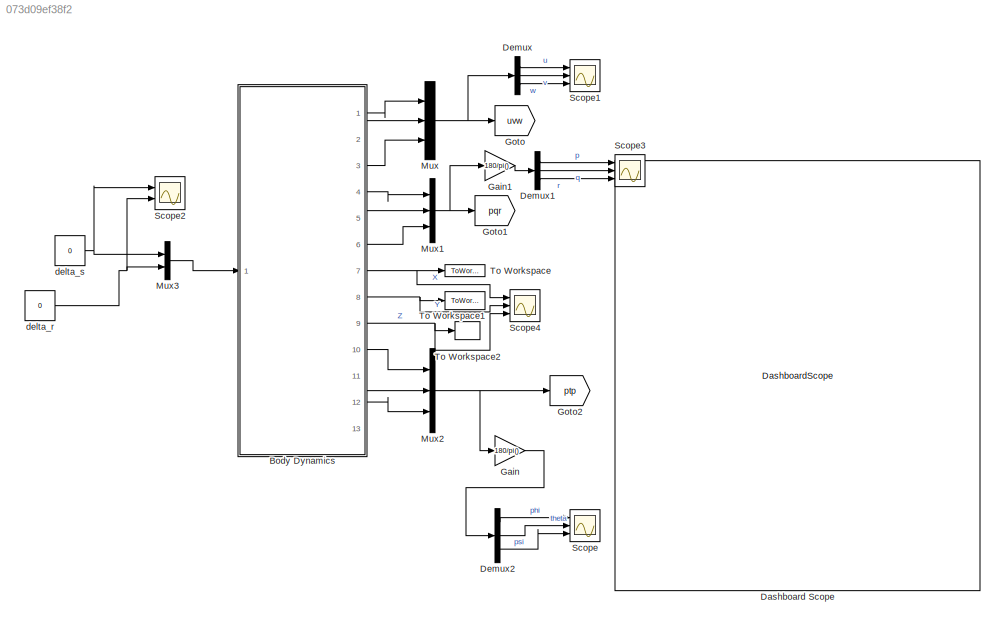
MODEL slx_073d09ef38f2
KIND model
CONFIG AbsTol = auto
CONFIG EnableMultiTasking = off
CONFIG FixedStep = auto
CONFIG MaxStep = auto
CONFIG MinStep = auto
CONFIG RelTol = 1e-3
CONFIG SampleTimeConstraint = Unconstrained
CONFIG Solver = VariableStepAuto
CONFIG SolverName = VariableStepAuto
CONFIG StartTime = 0.0
CONFIG StopTime = 70
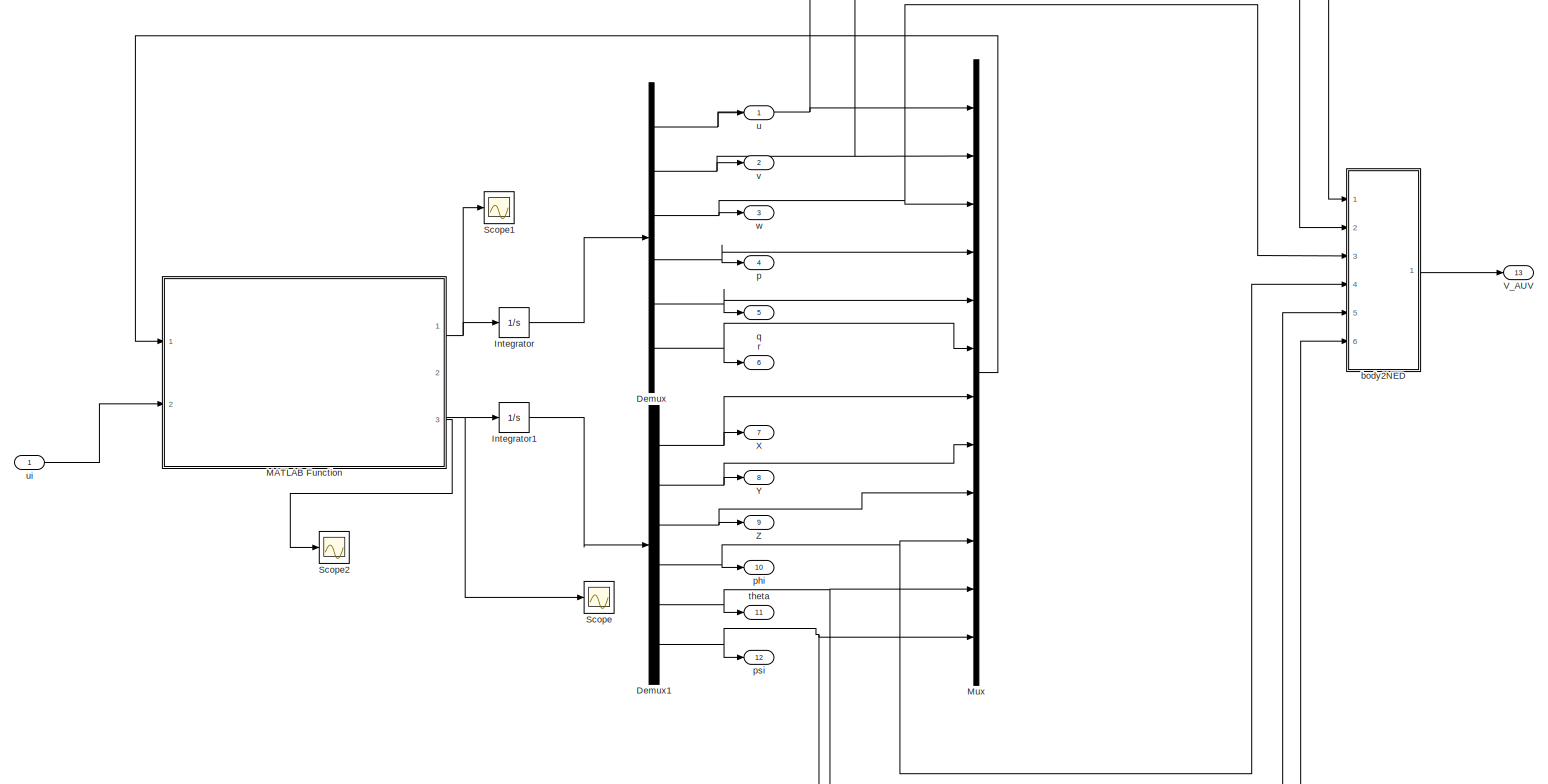
[diagram: Body Dynamics - part 1/1, most of the canvas]
BLOCK [SubSystem] Body Dynamics
  Ports = [1, 13]
  RequestExecContextInheritance = off
BLOCK [Demux] Body Dynamics/Demux
  DisplayOption = bar
  Outputs = 6
  Ports = [1, 6]
BLOCK [Demux] Body Dynamics/Demux1
  DisplayOption = bar
  Outputs = 6
  Ports = [1, 6]
BLOCK [Integrator] Body Dynamics/Integrator
  InitialCondition = [1.54; 0 ; 0; 0; 0; 0]
  Ports = [1, 1]
BLOCK [Integrator] Body Dynamics/Integrator1
  InitialCondition = [0; 0; 0.0196; -5*pi/180; 0; 0]
  Ports = [1, 1]
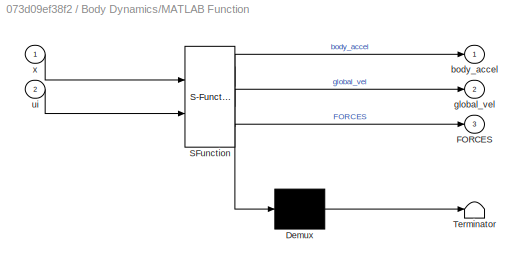
BLOCK [SubSystem] Body Dynamics/MATLAB Function
  ErrorFcn = Stateflow.Translate.translate
  PermitHierarchicalResolution = ExplicitOnly
  Ports = [2, 3]
  RequestExecContextInheritance = off
  SFBlockType = MATLAB Function
  TreatAsAtomicUnit = on
BLOCK [Demux] Body Dynamics/MATLAB Function/ Demux 
  Outputs = 1
  Ports = [1, 1]
BLOCK [S-Function] Body Dynamics/MATLAB Function/ SFunction 
  EnableBusSupport = on
  FunctionName = sf_sfun
  PortCounts = [2 4]
  Ports = [2, 4]
  SFcnIsStateOwnerBlock = off
  SFunctionDeploymentMode = off
  Tag = Stateflow S-Function 2
BLOCK [Terminator] Body Dynamics/MATLAB Function/ Terminator 
BLOCK [Outport] Body Dynamics/MATLAB Function/FORCES
  IconDisplay = Port number
  Port = 3
BLOCK [Outport] Body Dynamics/MATLAB Function/body_accel
  IconDisplay = Port number
BLOCK [Outport] Body Dynamics/MATLAB Function/global_vel
  IconDisplay = Port number
  Port = 2
BLOCK [Inport] Body Dynamics/MATLAB Function/ui
  IconDisplay = Port number
  Port = 2
BLOCK [Inport] Body Dynamics/MATLAB Function/x
  IconDisplay = Port number
BLOCK [Mux] Body Dynamics/Mux
  DisplayOption = bar
  Inputs = 12
  Ports = [12, 1]
BLOCK [Scope] Body Dynamics/Scope
  Floating = off
  NumInputPorts = 1
  Ports = [1]
  ScopeSpecificationString = Simulink.scopes.TimeScopeBlockCfg('CurrentConfiguration', extmgr.ConfigurationSet(extmgr.Configuration('Core','General UI',true),extmgr.Configuration('Core','Source UI',true),extmgr.Configuration('Sources','WiredSimulink',true,'DataLoggingVariableName','ScopeData1'),extmgr.Configuration('Visuals','Time Domain',true,'SerializedDisplays',{struct('MinYLimReal','-0.1925','MaxYLimReal','1.7325','YLabel...<+1671ch>
BLOCK [Scope] Body Dynamics/Scope1
  Floating = off
  NumInputPorts = 1
  Ports = [1]
  ScopeSpecificationString = Simulink.scopes.TimeScopeBlockCfg('CurrentConfiguration', extmgr.ConfigurationSet(extmgr.Configuration('Core','General UI',true),extmgr.Configuration('Core','Source UI',true),extmgr.Configuration('Sources','WiredSimulink',true,'DataLoggingVariableName','ScopeData1'),extmgr.Configuration('Visuals','Time Domain',true,'SerializedDisplays',{struct('MinYLimReal','-2.31341','MaxYLimReal','2.53823','YLab...<+1701ch>
BLOCK [Scope] Body Dynamics/Scope2
  Floating = off
  NumInputPorts = 1
  Ports = [1]
  ScopeSpecificationString = Simulink.scopes.TimeScopeBlockCfg('CurrentConfiguration', extmgr.ConfigurationSet(extmgr.Configuration('Core','General UI',true),extmgr.Configuration('Core','Source UI',true),extmgr.Configuration('Sources','WiredSimulink',true,'DataLoggingVariableName','ScopeData2'),extmgr.Configuration('Visuals','Time Domain',true,'SerializedDisplays',{struct('MinYLimReal','-2.9763','MaxYLimReal','18.55477','YLab...<+1780ch>
BLOCK [Outport] Body Dynamics/V_AUV
  IconDisplay = Port number
  Port = 13
BLOCK [Outport] Body Dynamics/X
  IconDisplay = Port number
  Port = 7
BLOCK [Outport] Body Dynamics/Y
  IconDisplay = Port number
  Port = 8
BLOCK [Outport] Body Dynamics/Z
  IconDisplay = Port number
  Port = 9
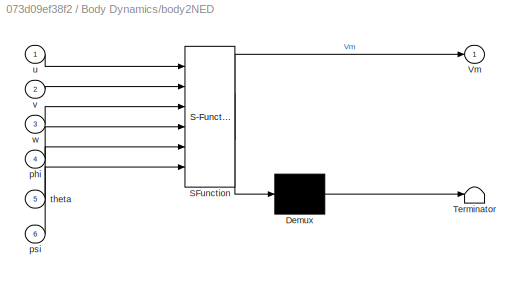
BLOCK [SubSystem] Body Dynamics/body2NED
  ErrorFcn = Stateflow.Translate.translate
  PermitHierarchicalResolution = ExplicitOnly
  Ports = [6, 1]
  RequestExecContextInheritance = off
  SFBlockType = MATLAB Function
  TreatAsAtomicUnit = on
BLOCK [Demux] Body Dynamics/body2NED/ Demux 
  Outputs = 1
  Ports = [1, 1]
BLOCK [S-Function] Body Dynamics/body2NED/ SFunction 
  EnableBusSupport = on
  FunctionName = sf_sfun
  PortCounts = [6 2]
  Ports = [6, 2]
  SFcnIsStateOwnerBlock = off
  SFunctionDeploymentMode = off
  Tag = Stateflow S-Function 11
BLOCK [Terminator] Body Dynamics/body2NED/ Terminator 
BLOCK [Outport] Body Dynamics/body2NED/Vm
  IconDisplay = Port number
  VectorParamsAs1DForOutWhenUnconnected = off
BLOCK [Inport] Body Dynamics/body2NED/phi
  IconDisplay = Port number
  Port = 4
BLOCK [Inport] Body Dynamics/body2NED/psi
  IconDisplay = Port number
  Port = 6
BLOCK [Inport] Body Dynamics/body2NED/theta
  IconDisplay = Port number
  Port = 5
BLOCK [Inport] Body Dynamics/body2NED/u
  IconDisplay = Port number
BLOCK [Inport] Body Dynamics/body2NED/v
  IconDisplay = Port number
  Port = 2
BLOCK [Inport] Body Dynamics/body2NED/w
  IconDisplay = Port number
  Port = 3
BLOCK [Outport] Body Dynamics/p
  IconDisplay = Port number
  Port = 4
BLOCK [Outport] Body Dynamics/phi
  IconDisplay = Port number
  Port = 10
BLOCK [Outport] Body Dynamics/psi
  IconDisplay = Port number
  Port = 12
BLOCK [Outport] Body Dynamics/q
  IconDisplay = Port number
  Port = 5
BLOCK [Outport] Body Dynamics/r
  IconDisplay = Port number
  Port = 6
BLOCK [Outport] Body Dynamics/theta
  IconDisplay = Port number
  Port = 11
BLOCK [Outport] Body Dynamics/u
  IconDisplay = Port number
BLOCK [Inport] Body Dynamics/ui
  IconDisplay = Port number
BLOCK [Outport] Body Dynamics/v
  IconDisplay = Port number
  Port = 2
BLOCK [Outport] Body Dynamics/w
  IconDisplay = Port number
  Port = 3
BLOCK [DashboardScope] Dashboard Scope
BLOCK [Demux] Demux
  DisplayOption = bar
  Outputs = 3
  Ports = [1, 3]
BLOCK [Demux] Demux1
  DisplayOption = bar
  Outputs = 3
  Ports = [1, 3]
BLOCK [Demux] Demux2
  DisplayOption = bar
  Outputs = 3
  Ports = [1, 3]
BLOCK [Gain] Gain
  Gain = 180/pi()
  OutDataTypeStr = Inherit: Inherit via internal rule
  ParamDataTypeStr = Inherit: Inherit via internal rule
  SaturateOnIntegerOverflow = off
BLOCK [Gain] Gain1
  Gain = 180/pi()
  OutDataTypeStr = Inherit: Inherit via internal rule
  ParamDataTypeStr = Inherit: Inherit via internal rule
  SaturateOnIntegerOverflow = off
BLOCK [Goto] Goto
  GotoTag = uvw
BLOCK [Goto] Goto1
  GotoTag = pqr
BLOCK [Goto] Goto2
  GotoTag = ptp
BLOCK [Mux] Mux
  DisplayOption = bar
  Inputs = 3
  Ports = [3, 1]
BLOCK [Mux] Mux1
  DisplayOption = bar
  Inputs = 3
  Ports = [3, 1]
BLOCK [Mux] Mux2
  DisplayOption = bar
  Inputs = 3
  Ports = [3, 1]
BLOCK [Mux] Mux3
  DisplayOption = bar
  Inputs = 2
  Ports = [2, 1]
BLOCK [Scope] Scope
  Floating = off
  NumInputPorts = 3
  Ports = [3]
  ScopeSpecificationString = Simulink.scopes.TimeScopeBlockCfg('CurrentConfiguration', extmgr.ConfigurationSet(extmgr.Configuration('Core','General UI',true),extmgr.Configuration('Core','Source UI',true),extmgr.Configuration('Sources','WiredSimulink',true),extmgr.Configuration('Visuals','Time Domain',true,'SerializedDisplays',{struct('MinYLimReal','-5.625','MaxYLimReal','0.625','YLabelReal','angle [deg]','MinYLimMag','0.00000...<+1469ch>
BLOCK [Scope] Scope1
  Floating = off
  NumInputPorts = 3
  Ports = [3]
  ScopeSpecificationString = Simulink.scopes.TimeScopeBlockCfg('CurrentConfiguration', extmgr.ConfigurationSet(extmgr.Configuration('Core','General UI',true),extmgr.Configuration('Core','Source UI',true),extmgr.Configuration('Sources','WiredSimulink',true,'DataLoggingVariableName','ScopeData2'),extmgr.Configuration('Visuals','Time Domain',true,'SerializedDisplays',{struct('MinYLimReal','-0.33597','MaxYLimReal','1.74844','YLab...<+1677ch>
BLOCK [Scope] Scope2
  Floating = off
  NumInputPorts = 2
  Ports = [2]
  ScopeSpecificationString = Simulink.scopes.TimeScopeBlockCfg('CurrentConfiguration', extmgr.ConfigurationSet(extmgr.Configuration('Core','General UI',true),extmgr.Configuration('Core','Source UI',true),extmgr.Configuration('Sources','WiredSimulink',true,'DataLoggingVariableName','ScopeData3'),extmgr.Configuration('Visuals','Time Domain',true,'SerializedDisplays',{struct('MinYLimReal','-0.08727','MaxYLimReal','0.08727','YLab...<+1454ch>
BLOCK [Scope] Scope3
  Floating = off
  NumInputPorts = 3
  Ports = [3]
  ScopeSpecificationString = Simulink.scopes.TimeScopeBlockCfg('CurrentConfiguration', extmgr.ConfigurationSet(extmgr.Configuration('Core','General UI',true),extmgr.Configuration('Core','Source UI',true),extmgr.Configuration('Sources','WiredSimulink',true,'DataLoggingVariableName','ScopeData4'),extmgr.Configuration('Visuals','Time Domain',true,'SerializedDisplays',{struct('MinYLimReal','-1.00000','MaxYLimReal','1.00000','YLab...<+1540ch>
BLOCK [Scope] Scope4
  Floating = off
  NumInputPorts = 3
  Ports = [3]
  ScopeSpecificationString = Simulink.scopes.TimeScopeBlockCfg('CurrentConfiguration', extmgr.ConfigurationSet(extmgr.Configuration('Core','General UI',true),extmgr.Configuration('Core','Source UI',true),extmgr.Configuration('Sources','WiredSimulink',true,'DataLoggingVariableName','ScopeData3'),extmgr.Configuration('Visuals','Time Domain',true,'SerializedDisplays',{struct('MinYLimReal','-15.04646','MaxYLimReal','92.0214','YLa...<+1567ch>
BLOCK [ToWorkspace] To Workspace
  MaxDataPoints = inf
  Ports = [1]
  SampleTime = -1
  Save2DSignal = 2-D array (concatenate along first dimension)
  VariableName = X
BLOCK [ToWorkspace] To Workspace1
  MaxDataPoints = inf
  Ports = [1]
  SampleTime = -1
  Save2DSignal = 2-D array (concatenate along first dimension)
  VariableName = Y
BLOCK [ToWorkspace] To Workspace2
  MaxDataPoints = inf
  Ports = [1]
  SampleTime = -1
  Save2DSignal = 2-D array (concatenate along first dimension)
  VariableName = Z
BLOCK [Constant] delta_r
  Value = 0
BLOCK [Constant] delta_s
  Value = 0
NET Body Dynamics/Demux1:1 -> Body Dynamics/Mux:7, Body Dynamics/X:1
NET Body Dynamics/Demux1:2 -> Body Dynamics/Mux:8, Body Dynamics/Y:1
NET Body Dynamics/Demux1:3 -> Body Dynamics/Mux:9, Body Dynamics/Z:1
NET Body Dynamics/Demux1:4 -> Body Dynamics/Mux:10, Body Dynamics/body2NED:4, Body Dynamics/phi:1
NET Body Dynamics/Demux1:5 -> Body Dynamics/Mux:11, Body Dynamics/body2NED:5, Body Dynamics/theta:1
NET Body Dynamics/Demux1:6 -> Body Dynamics/Mux:12, Body Dynamics/body2NED:6, Body Dynamics/psi:1
NET Body Dynamics/Demux:1 -> Body Dynamics/Mux:1, Body Dynamics/body2NED:1, Body Dynamics/u:1
NET Body Dynamics/Demux:2 -> Body Dynamics/Mux:2, Body Dynamics/body2NED:2, Body Dynamics/v:1
NET Body Dynamics/Demux:3 -> Body Dynamics/Mux:3, Body Dynamics/body2NED:3, Body Dynamics/w:1
NET Body Dynamics/Demux:4 -> Body Dynamics/Mux:4, Body Dynamics/p:1
NET Body Dynamics/Demux:5 -> Body Dynamics/Mux:5, Body Dynamics/q:1
NET Body Dynamics/Demux:6 -> Body Dynamics/Mux:6, Body Dynamics/r:1
LINE Body Dynamics/Integrator1:1 -> Body Dynamics/Demux1:1
LINE Body Dynamics/Integrator:1 -> Body Dynamics/Demux:1
NET Body Dynamics/MATLAB Function:1 -> Body Dynamics/Integrator:1, Body Dynamics/Scope1:1
NET Body Dynamics/MATLAB Function:2 -> Body Dynamics/Integrator1:1, Body Dynamics/Scope:1
LINE Body Dynamics/MATLAB Function:3 -> Body Dynamics/Scope2:1
LINE Body Dynamics/Mux:1 -> Body Dynamics/MATLAB Function:1
LINE Body Dynamics/body2NED:1 -> Body Dynamics/V_AUV:1
LINE Body Dynamics/ui:1 -> Body Dynamics/MATLAB Function:2
LINE Body Dynamics:1 -> Mux:1
LINE Body Dynamics:10 -> Mux2:1
LINE Body Dynamics:11 -> Mux2:2
LINE Body Dynamics:12 -> Mux2:3
LINE Body Dynamics:2 -> Mux:2
LINE Body Dynamics:3 -> Mux:3
LINE Body Dynamics:4 -> Mux1:1
LINE Body Dynamics:5 -> Mux1:2
LINE Body Dynamics:6 -> Mux1:3
NET Body Dynamics:7 -> Scope4:1, To Workspace:1
NET Body Dynamics:8 -> Scope4:2, To Workspace1:1
NET Body Dynamics:9 -> Scope4:3, To Workspace2:1
LINE Demux1:1 -> Scope3:1
LINE Demux1:2 -> Scope3:2
LINE Demux1:3 -> Scope3:3
LINE Demux2:1 -> Scope:1
LINE Demux2:2 -> Scope:2
LINE Demux2:3 -> Scope:3
LINE Demux:1 -> Scope1:1
LINE Demux:2 -> Scope1:2
LINE Demux:3 -> Scope1:3
LINE Gain1:1 -> Demux1:1
LINE Gain:1 -> Demux2:1
NET Mux1:1 -> Gain1:1, Goto1:1
NET Mux2:1 -> Gain:1, Goto2:1
LINE Mux3:1 -> Body Dynamics:1
NET Mux:1 -> Demux:1, Goto:1
NET delta_r:1 -> Mux3:2, Scope2:2
NET delta_s:1 -> Mux3:1, Scope2:1
note: NET lines group one-source signal fan-out (src -> all destinations, sorted); 1:1 wires keep LINE
CHART Body Dynamics/MATLAB Function states=1 transitions=1
  STATE_LABEL 'eML_blk_kernel()'
  STATE_LABEL "SCRIPT:\n% REMUS.M Vehicle Simulator, returns the \n%   time derivative of the state vector\nfunction [body_accel,global_vel,FORCES] = remus(x,ui)\n% TERMS\n% ---------------------------------------------------------------------\n% STATE VECTOR:\n% x = [u v w p q r xpos ypos zpos phi theta psi]'\n% Body-referenced Coordinates\n% u = Surge velocity [m/sec]\n% v = Sway velocity [m/sec]\n% w = Heave velocity [m...<+3608ch>"
CHART Body Dynamics/body2NED states=1 transitions=1
  STATE_LABEL 'eML_blk_kernel()'
  STATE_LABEL 'SCRIPT:\nfunction Vm= fcn(u,v,w,phi,theta,psi)\nN=[cos(theta)*cos(psi) (sin(phi)*sin(theta)*cos(psi)-cos(phi)*sin(psi)) (cos(phi)*sin(theta)*cos(psi)+sin(phi)*sin(psi));\n   -cos(theta)*sin(psi) -(sin(phi)*sin(theta)*sin(psi)+cos(phi)*cos(psi)) -(cos(phi)*sin(theta)*sin(psi) - sin(phi)*cos(psi));\n   sin(theta) -sin(phi)*cos(theta) -cos(phi)*cos(theta)];\nVm=N*[u;v;w];\nend'
